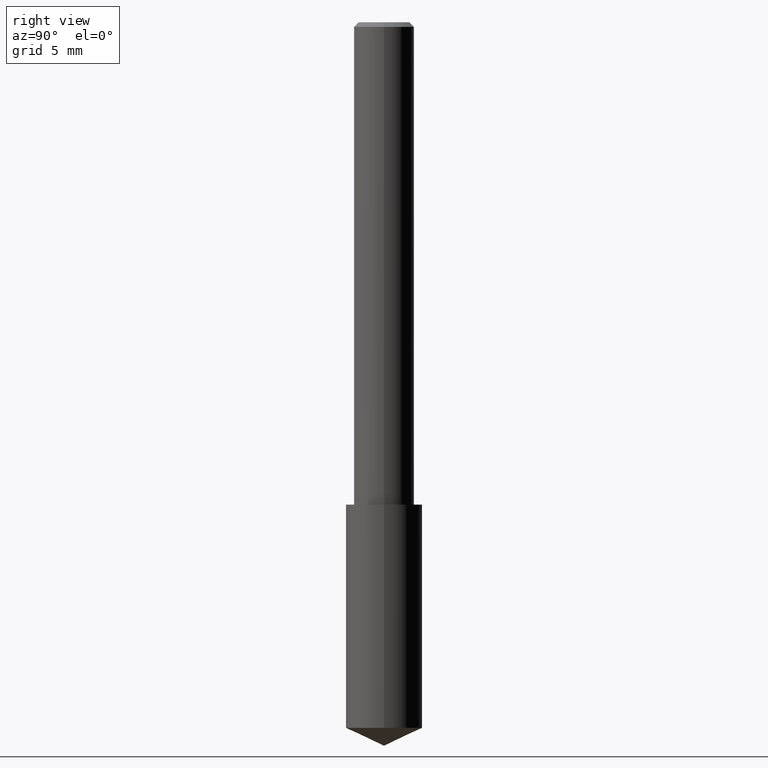
[diagram: clean part render]
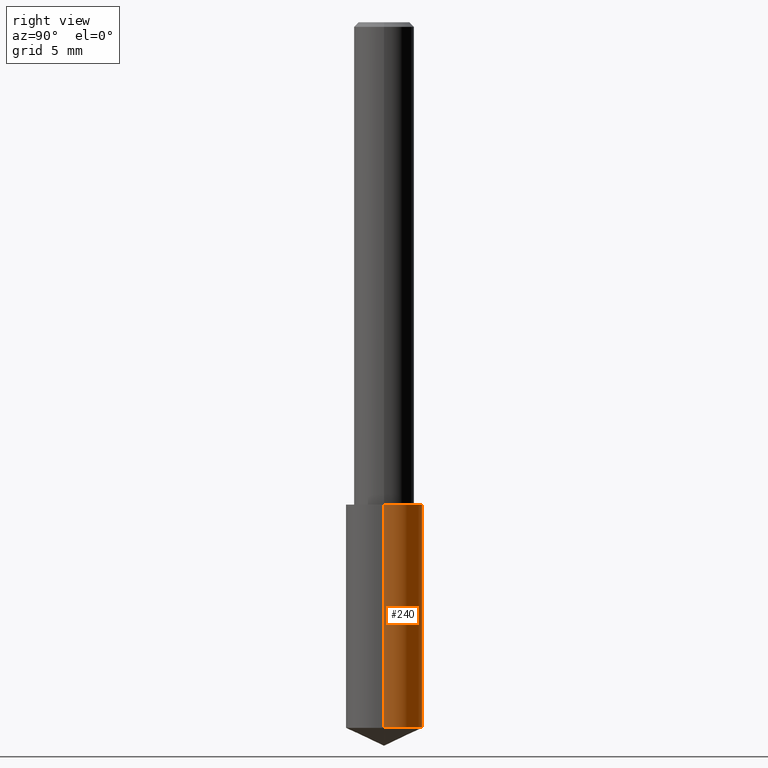
[diagram: same view with one face highlighted and labeled with its STEP entity id]
A machine part, right view. The second image highlights one B-rep face of the part: STEP entity #240.
In plain terms, the highlighted cylindrical surface (partial cylindrical patch) has radius 2.0193 mm, axis along (-0, 0, 1).
Its self-contained STEP definition (entity closure, byte-faithful):
#7 = EDGE_CURVE ( 'NONE', #297, #228, #116, .T. ) ;
#16 = EDGE_CURVE ( 'NONE', #237, #63, #312, .T. ) ;
#24 = CIRCLE ( 'NONE', #236, 0.07950000000000000122 ) ;
#26 = DIRECTION ( 'NONE',  ( 1.000000000000000000, -6.982962677686265922E-15, 0.000000000000000000 ) ) ;
#33 = CARTESIAN_POINT ( 'NONE',  ( -0.07950000000000000122, -4.542906226650117336E-15, -1.462928541176677699 ) ) ;
#37 = DIRECTION ( 'NONE',  ( -2.445468806185136597E-29, 3.491481338843145583E-15, 1.000000000000000000 ) ) ;
#60 = DIRECTION ( 'NONE',  ( 1.000000000000000000, -6.982962677686265922E-15, 0.000000000000000000 ) ) ;
#63 = VERTEX_POINT ( 'NONE', #230 ) ;
#67 = AXIS2_PLACEMENT_3D ( 'NONE', #103, #190, #294 ) ;
#70 = CARTESIAN_POINT ( 'NONE',  ( 0.07950000000000000122, -4.046626871719204622E-15, -1.000000000000000222 ) ) ;
#83 = EDGE_CURVE ( 'NONE', #63, #228, #106, .T. ) ;
#103 = CARTESIAN_POINT ( 'NONE',  ( 2.445468806185137438E-29, -3.491481338843146371E-15, -1.000000000000000222 ) ) ;
#106 = CIRCLE ( 'NONE', #273, 0.07950000000000000122 ) ;
#116 = LINE ( 'NONE', #207, #308 ) ;
#133 = ORIENTED_EDGE ( 'NONE', *, *, #83, .F. ) ;
#135 = VECTOR ( 'NONE', #218, 39.37007874015748143 ) ;
#159 = CYLINDRICAL_SURFACE ( 'NONE', #67, 0.07950000000000000122 ) ;
#190 = DIRECTION ( 'NONE',  ( -2.445468806185136597E-29, 3.491481338843145583E-15, 1.000000000000000000 ) ) ;
#191 = DIRECTION ( 'NONE',  ( -2.445468806185136597E-29, 3.491481338843145583E-15, 1.000000000000000000 ) ) ;
#201 = CARTESIAN_POINT ( 'NONE',  ( 2.445468806185136877E-29, -3.491481338843145977E-15, -1.000000000000000222 ) ) ;
#207 = CARTESIAN_POINT ( 'NONE',  ( -0.07950000000000000122, -2.926599863913867011E-15, -1.000000000000000222 ) ) ;
#218 = DIRECTION ( 'NONE',  ( -2.445468806185136877E-29, 3.491481338843145188E-15, 1.000000000000000000 ) ) ;
#228 = VERTEX_POINT ( 'NONE', #321 ) ;
#230 = CARTESIAN_POINT ( 'NONE',  ( 0.07950000000000000122, -4.046626871719203833E-15, -1.000000000000000222 ) ) ;
#236 = AXIS2_PLACEMENT_3D ( 'NONE', #339, #191, #26 ) ;
#237 = VERTEX_POINT ( 'NONE', #262 ) ;
#240 = ADVANCED_FACE ( 'NONE', ( #315 ), #159, .T. ) ;
#248 = DIRECTION ( 'NONE',  ( -2.445468806185136877E-29, 3.491481338843145188E-15, 1.000000000000000000 ) ) ;
#262 = CARTESIAN_POINT ( 'NONE',  ( 0.07950000000000000122, -5.662933234455454158E-15, -1.462928541176677699 ) ) ;
#264 = ORIENTED_EDGE ( 'NONE', *, *, #340, .T. ) ;
#273 = AXIS2_PLACEMENT_3D ( 'NONE', #201, #37, #60 ) ;
#288 = ORIENTED_EDGE ( 'NONE', *, *, #16, .F. ) ;
#294 = DIRECTION ( 'NONE',  ( 1.000000000000000000, -6.982962677686265922E-15, 0.000000000000000000 ) ) ;
#297 = VERTEX_POINT ( 'NONE', #33 ) ;
#301 = ORIENTED_EDGE ( 'NONE', *, *, #7, .T. ) ;
#308 = VECTOR ( 'NONE', #248, 39.37007874015748143 ) ;
#312 = LINE ( 'NONE', #70, #135 ) ;
#315 = FACE_OUTER_BOUND ( 'NONE', #337, .T. ) ;
#321 = CARTESIAN_POINT ( 'NONE',  ( -0.07950000000000000122, -3.734753045281991384E-15, -1.000000000000000222 ) ) ;
#337 = EDGE_LOOP ( 'NONE', ( #264, #301, #133, #288 ) ) ;
#339 = CARTESIAN_POINT ( 'NONE',  ( 3.577546113125493267E-29, -5.107787701579397091E-15, -1.462928541176677699 ) ) ;
#340 = EDGE_CURVE ( 'NONE', #237, #297, #24, .T. ) ;